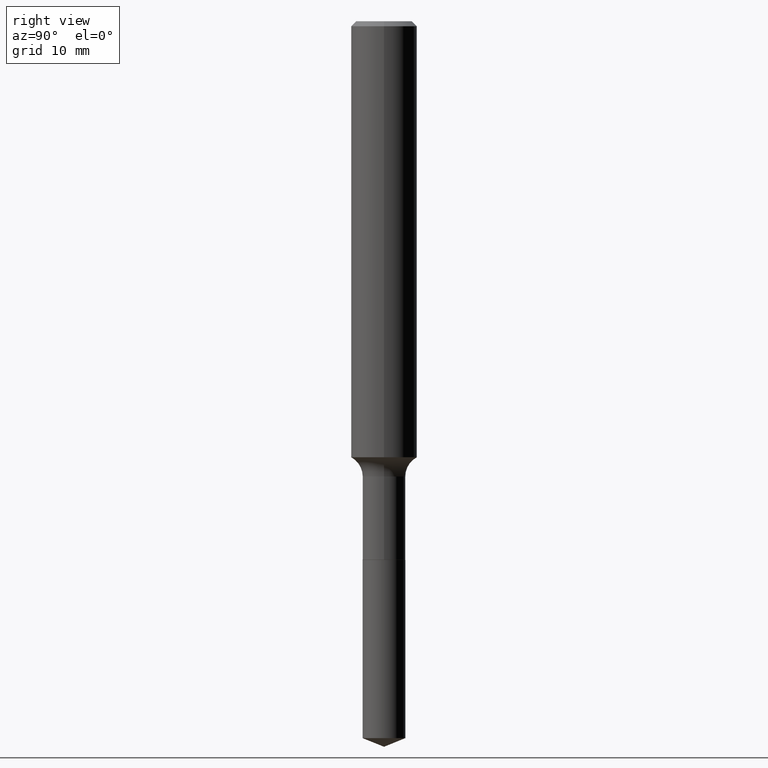
[diagram: clean part render]
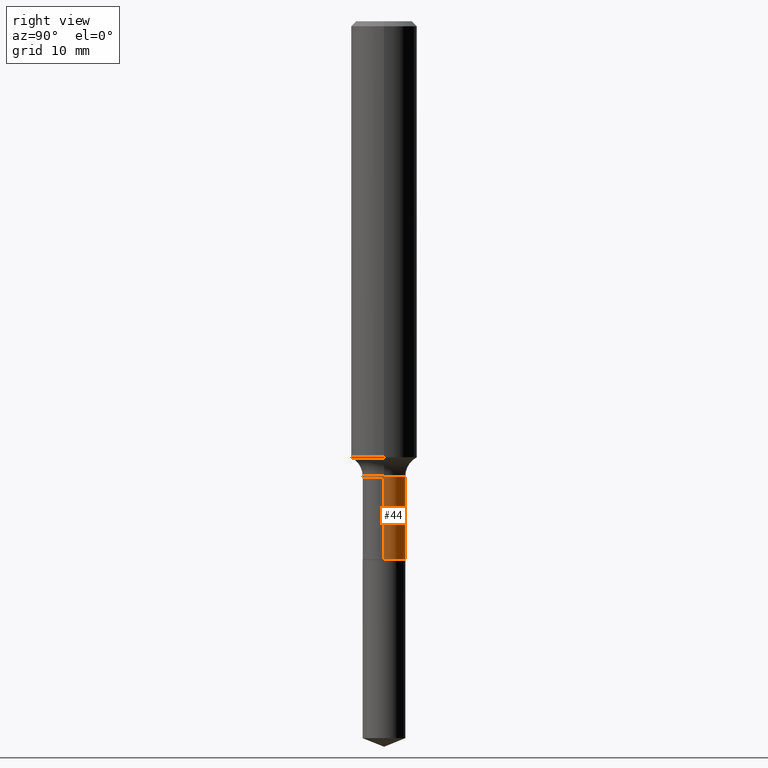
[diagram: same view with one face highlighted and labeled with its STEP entity id]
A machine part, right view. The second image highlights one B-rep face of the part: STEP entity #44.
In plain terms, the highlighted cylindrical surface (edge-blend (fillet) strip) has radius 1.9494 mm, axis along (-0, 0, 1).
Its self-contained STEP definition (entity closure, byte-faithful):
#17 = CARTESIAN_POINT ( 'NONE',  ( -0.07674999999999997102, -5.667924066842443085E-15, -1.630500000000000060 ) ) ;
#39 = DIRECTION ( 'NONE',  ( -2.445468806185136597E-29, 3.491481338843145583E-15, 1.000000000000000000 ) ) ;
#44 = ADVANCED_FACE ( 'NONE', ( #167 ), #321, .T. ) ;
#47 = DIRECTION ( 'NONE',  ( -2.445468806185136597E-29, 3.491481338843145583E-15, 1.000000000000000000 ) ) ;
#65 = CARTESIAN_POINT ( 'NONE',  ( 0.07674999999999999878, -7.269613295605313095E-15, -1.928600000000000092 ) ) ;
#68 = VERTEX_POINT ( 'NONE', #17 ) ;
#69 = VECTOR ( 'NONE', #370, 39.37007874015748143 ) ;
#71 = CARTESIAN_POINT ( 'NONE',  ( -0.07674999999999998490, 5.453415496958767854E-16, -3.775282681770638931E-30 ) ) ;
#75 = CIRCLE ( 'NONE', #144, 0.07674999999999999878 ) ;
#85 = CARTESIAN_POINT ( 'NONE',  ( 0.000000000000000000, 0.000000000000000000, 0.000000000000000000 ) ) ;
#92 = ORIENTED_EDGE ( 'NONE', *, *, #94, .T. ) ;
#94 = EDGE_CURVE ( 'NONE', #120, #132, #75, .T. ) ;
#95 = CARTESIAN_POINT ( 'NONE',  ( 4.716331139608654438E-29, -6.733670910092890989E-15, -1.928600000000000092 ) ) ;
#97 = LINE ( 'NONE', #402, #159 ) ;
#120 = VERTEX_POINT ( 'NONE', #65 ) ;
#125 = VERTEX_POINT ( 'NONE', #174 ) ;
#132 = VERTEX_POINT ( 'NONE', #337 ) ;
#144 = AXIS2_PLACEMENT_3D ( 'NONE', #95, #391, #249 ) ;
#159 = VECTOR ( 'NONE', #172, 39.37007874015748143 ) ;
#167 = FACE_OUTER_BOUND ( 'NONE', #380, .T. ) ;
#172 = DIRECTION ( 'NONE',  ( -2.445468806185136877E-29, 3.491481338843145188E-15, 1.000000000000000000 ) ) ;
#174 = CARTESIAN_POINT ( 'NONE',  ( 0.07674999999999997102, -6.228802708496169280E-15, -1.630500000000000060 ) ) ;
#184 = CIRCLE ( 'NONE', #339, 0.07674999999999997102 ) ;
#202 = EDGE_CURVE ( 'NONE', #120, #125, #97, .T. ) ;
#217 = AXIS2_PLACEMENT_3D ( 'NONE', #85, #47, #289 ) ;
#230 = ORIENTED_EDGE ( 'NONE', *, *, #202, .F. ) ;
#247 = ORIENTED_EDGE ( 'NONE', *, *, #399, .F. ) ;
#249 = DIRECTION ( 'NONE',  ( 1.000000000000000000, -6.982962677686273021E-15, 0.000000000000000000 ) ) ;
#271 = ORIENTED_EDGE ( 'NONE', *, *, #427, .T. ) ;
#289 = DIRECTION ( 'NONE',  ( 1.000000000000000000, -6.982962677686265922E-15, 4.876176775795935793E-29 ) ) ;
#321 = CYLINDRICAL_SURFACE ( 'NONE', #217, 0.07674999999999998490 ) ;
#337 = CARTESIAN_POINT ( 'NONE',  ( -0.07674999999999999878, -5.667924066842443085E-15, -1.928600000000000092 ) ) ;
#339 = AXIS2_PLACEMENT_3D ( 'NONE', #378, #39, #483 ) ;
#370 = DIRECTION ( 'NONE',  ( -2.445468806185136877E-29, 3.491481338843145188E-15, 1.000000000000000000 ) ) ;
#378 = CARTESIAN_POINT ( 'NONE',  ( 3.987336888484864983E-29, -5.692860322983748752E-15, -1.630500000000000060 ) ) ;
#380 = EDGE_LOOP ( 'NONE', ( #92, #271, #247, #230 ) ) ;
#391 = DIRECTION ( 'NONE',  ( -2.445468806185136597E-29, 3.491481338843145583E-15, 1.000000000000000000 ) ) ;
#399 = EDGE_CURVE ( 'NONE', #125, #68, #184, .T. ) ;
#402 = CARTESIAN_POINT ( 'NONE',  ( 0.07674999999999998490, -5.359423855124208241E-16, 3.742465675423380104E-30 ) ) ;
#411 = LINE ( 'NONE', #71, #69 ) ;
#427 = EDGE_CURVE ( 'NONE', #132, #68, #411, .T. ) ;
#483 = DIRECTION ( 'NONE',  ( 1.000000000000000000, -6.982962677686261977E-15, 0.000000000000000000 ) ) ;